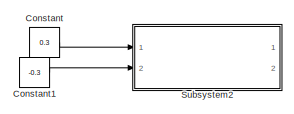
[diagram: root canvas - part 1/2, top right region]
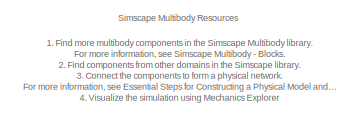
[diagram: root canvas - part 2/2, bottom left region]
MODEL slx_92b67b365d35
KIND model
CONFIG AbsTol = 1e-3
CONFIG EnableMultiTasking = on
CONFIG FixedStep = auto
CONFIG MaxStep = auto
CONFIG MinStep = auto
CONFIG RelTol = 1e-3
CONFIG SampleTimeConstraint = Unconstrained
CONFIG SolverName = VariableStepAuto
CONFIG StartTime = 0.0
CONFIG StopTime = 2
BLOCK [Constant] Constant
  Value = 0.3
BLOCK [Constant] Constant1
  Value = -0.3
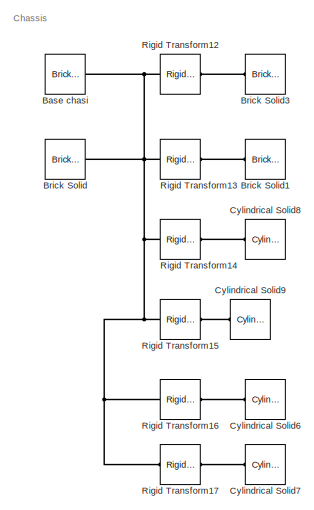
[diagram: Subsystem2 - part 1/6, top right region]
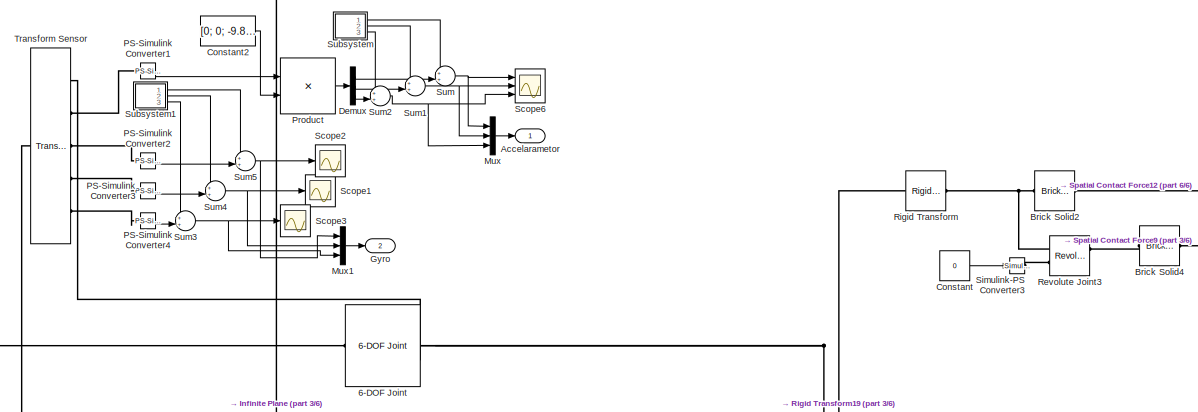
[diagram: Subsystem2 - part 2/6, top left region]
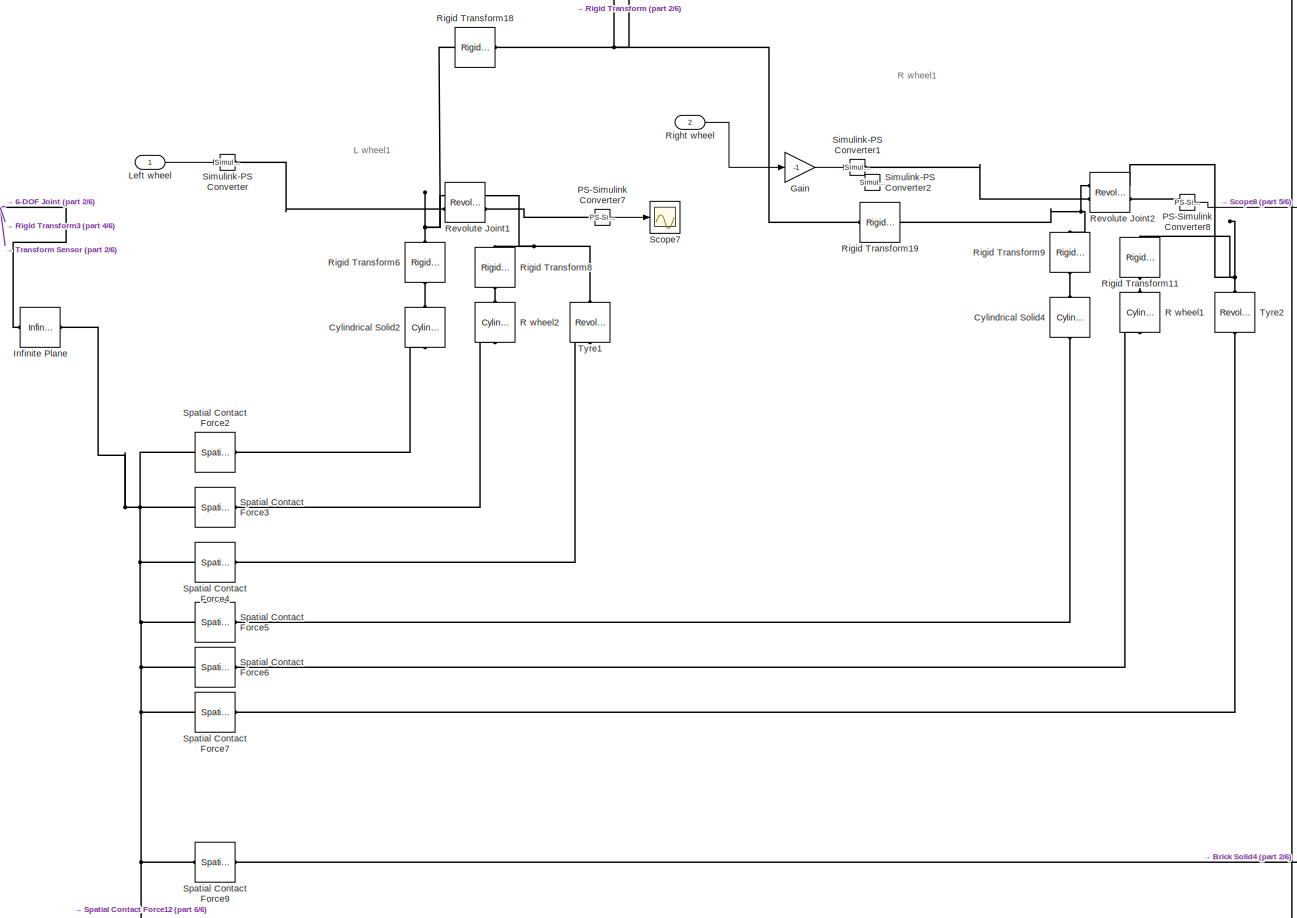
[diagram: Subsystem2 - part 3/6, bottom center region]
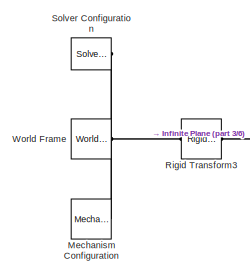
[diagram: Subsystem2 - part 4/6, middle left region]
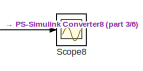
[diagram: Subsystem2 - part 5/6, middle right region]
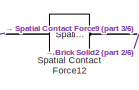
[diagram: Subsystem2 - part 6/6, bottom left region]
BLOCK [SubSystem] Subsystem2
  Ports = [2, 2]
  RequestExecContextInheritance = off
BLOCK [Reference] Subsystem2/6-DOF Joint  REF=sm_lib/Joints/6-DOF Joint
  Ports = [0, 0, 0, 0, 0, 1, 1]
  SourceBlock = sm_lib/Joints/6-DOF Joint
  SourceProductBaseCode = MS
  SourceType = 6-DOF Joint
BLOCK [Outport] Subsystem2/Accelarametor
BLOCK [Reference] Subsystem2/Base chasi  REF=sm_lib/Body Elements/Brick Solid
  Commented = on
  NameLocation = left
  Ports = [0, 0, 0, 0, 0, 0, 1]
  SourceBlock = sm_lib/Body Elements/Brick Solid
  SourceProductName = Multibody
  SourceType = Brick Solid
BLOCK [Reference] Subsystem2/Brick Solid  REF=sm_lib/Body Elements/Brick Solid
  Commented = on
  Ports = [0, 0, 0, 0, 0, 1, 1]
  SourceBlock = sm_lib/Body Elements/Brick Solid
  SourceProductBaseCode = MS
  SourceType = Brick Solid
BLOCK [Reference] Subsystem2/Brick Solid1  REF=sm_lib/Body Elements/Brick Solid
  Commented = on
  NameLocation = right
  Ports = [0, 0, 0, 0, 0, 1, 1]
  SourceBlock = sm_lib/Body Elements/Brick Solid
  SourceProductName = Multibody
  SourceType = Brick Solid
BLOCK [Reference] Subsystem2/Brick Solid2  REF=sm_lib/Body Elements/Brick Solid
  NameLocation = top
  Ports = [0, 0, 0, 0, 0, 1, 1]
  SourceBlock = sm_lib/Body Elements/Brick Solid
  SourceProductBaseCode = MS
  SourceType = Brick Solid
BLOCK [Reference] Subsystem2/Brick Solid3  REF=sm_lib/Body Elements/Brick Solid
  Commented = on
  NameLocation = right
  Ports = [0, 0, 0, 0, 0, 1, 1]
  SourceBlock = sm_lib/Body Elements/Brick Solid
  SourceProductName = Multibody
  SourceType = Brick Solid
BLOCK [Reference] Subsystem2/Brick Solid4  REF=sm_lib/Body Elements/Brick Solid
  NameLocation = top
  Ports = [0, 0, 0, 0, 0, 1, 1]
  SourceBlock = sm_lib/Body Elements/Brick Solid
  SourceProductBaseCode = MS
  SourceType = Brick Solid
BLOCK [Constant] Subsystem2/Constant
  Value = 0
BLOCK [Constant] Subsystem2/Constant2
  Value = [0; 0; -9.80665]
  VectorParams1D = off
BLOCK [Reference] Subsystem2/Cylindrical Solid2  REF=sm_lib/Body Elements/Cylindrical Solid
  NameLocation = right
  Ports = [0, 0, 0, 0, 0, 1, 1]
  SourceBlock = sm_lib/Body Elements/Cylindrical Solid
  SourceProductBaseCode = MS
  SourceType = Cylindrical Solid
BLOCK [Reference] Subsystem2/Cylindrical Solid4  REF=sm_lib/Body Elements/Cylindrical Solid
  NameLocation = right
  Ports = [0, 0, 0, 0, 0, 1, 1]
  SourceBlock = sm_lib/Body Elements/Cylindrical Solid
  SourceProductBaseCode = MS
  SourceType = Cylindrical Solid
BLOCK [Reference] Subsystem2/Cylindrical Solid6  REF=sm_lib/Body Elements/Cylindrical Solid
  Commented = on
  NameLocation = top
  Ports = [0, 0, 0, 0, 0, 1, 1]
  SourceBlock = sm_lib/Body Elements/Cylindrical Solid
  SourceProductBaseCode = MS
  SourceType = Cylindrical Solid
BLOCK [Reference] Subsystem2/Cylindrical Solid7  REF=sm_lib/Body Elements/Cylindrical Solid
  Commented = on
  NameLocation = top
  Ports = [0, 0, 0, 0, 0, 1, 1]
  SourceBlock = sm_lib/Body Elements/Cylindrical Solid
  SourceProductBaseCode = MS
  SourceType = Cylindrical Solid
BLOCK [Reference] Subsystem2/Cylindrical Solid8  REF=sm_lib/Body Elements/Cylindrical Solid
  Commented = on
  NameLocation = top
  Ports = [0, 0, 0, 0, 0, 1, 1]
  SourceBlock = sm_lib/Body Elements/Cylindrical Solid
  SourceProductBaseCode = MS
  SourceType = Cylindrical Solid
BLOCK [Reference] Subsystem2/Cylindrical Solid9  REF=sm_lib/Body Elements/Cylindrical Solid
  Commented = on
  NameLocation = top
  Ports = [0, 0, 0, 0, 0, 1, 1]
  SourceBlock = sm_lib/Body Elements/Cylindrical Solid
  SourceProductBaseCode = MS
  SourceType = Cylindrical Solid
BLOCK [Demux] Subsystem2/Demux
  Outputs = 3
  Ports = [1, 3]
BLOCK [Gain] Subsystem2/Gain
  Gain = -1
BLOCK [Outport] Subsystem2/Gyro
  Port = 2
BLOCK [Reference] Subsystem2/Infinite Plane  REF=sm_lib/Curves and Surfaces/Infinite Plane
  Ports = [0, 0, 0, 0, 0, 1, 1]
  SourceBlock = sm_lib/Curves and Surfaces/Infinite Plane
  SourceProductBaseCode = MS
  SourceType = Infinite Plane
BLOCK [Inport] Subsystem2/Left wheel
BLOCK [Reference] Subsystem2/Mechanism Configuration  REF=sm_lib/Utilities/Mechanism
Configuration
  Ports = [0, 0, 0, 0, 0, 0, 1]
  SourceBlock = sm_lib/Utilities/Mechanism\nConfiguration
  SourceProductName = Multibody
  SourceType = Mechanism\nConfiguration
BLOCK [Mux] Subsystem2/Mux
  DisplayOption = bar
  Inputs = 3
  Ports = [3, 1]
BLOCK [Mux] Subsystem2/Mux1
  DisplayOption = bar
  Inputs = 3
  Ports = [3, 1]
BLOCK [Reference] Subsystem2/PS-Simulink Converter1  REF=nesl_utility/PS-Simulink
Converter
  Ports = [0, 1, 0, 0, 0, 1]
  SourceBlock = nesl_utility/PS-Simulink\nConverter
  SourceProductBaseCode = PW,SS
  SourceType = PS-Simulink\nConverter
BLOCK [Reference] Subsystem2/PS-Simulink Converter2  REF=nesl_utility/PS-Simulink
Converter
  Ports = [0, 1, 0, 0, 0, 1]
  SourceBlock = nesl_utility/PS-Simulink\nConverter
  SourceProductBaseCode = PW,SS
  SourceType = PS-Simulink\nConverter
BLOCK [Reference] Subsystem2/PS-Simulink Converter3  REF=nesl_utility/PS-Simulink
Converter
  Ports = [0, 1, 0, 0, 0, 1]
  SourceBlock = nesl_utility/PS-Simulink\nConverter
  SourceProductBaseCode = PW,SS
  SourceType = PS-Simulink\nConverter
BLOCK [Reference] Subsystem2/PS-Simulink Converter4  REF=nesl_utility/PS-Simulink
Converter
  Ports = [0, 1, 0, 0, 0, 1]
  SourceBlock = nesl_utility/PS-Simulink\nConverter
  SourceProductBaseCode = PW,SS
  SourceType = PS-Simulink\nConverter
BLOCK [Reference] Subsystem2/PS-Simulink Converter7  REF=nesl_utility/PS-Simulink
Converter
  Ports = [0, 1, 0, 0, 0, 1]
  SourceBlock = nesl_utility/PS-Simulink\nConverter
  SourceProductBaseCode = PW,SS
  SourceType = PS-Simulink\nConverter
BLOCK [Reference] Subsystem2/PS-Simulink Converter8  REF=nesl_utility/PS-Simulink
Converter
  Ports = [0, 1, 0, 0, 0, 1]
  SourceBlock = nesl_utility/PS-Simulink\nConverter
  SourceProductBaseCode = PW,SS
  SourceType = PS-Simulink\nConverter
BLOCK [Product] Subsystem2/Product
  Multiplication = Matrix(*)
  Ports = [2, 1]
BLOCK [Reference] Subsystem2/R wheel1  REF=sm_lib/Body Elements/Cylindrical Solid
  NameLocation = right
  Ports = [0, 0, 0, 0, 0, 1, 1]
  SourceBlock = sm_lib/Body Elements/Cylindrical Solid
  SourceProductBaseCode = MS
  SourceType = Cylindrical Solid
BLOCK [Reference] Subsystem2/R wheel2  REF=sm_lib/Body Elements/Cylindrical Solid
  NameLocation = right
  Ports = [0, 0, 0, 0, 0, 1, 1]
  SourceBlock = sm_lib/Body Elements/Cylindrical Solid
  SourceProductBaseCode = MS
  SourceType = Cylindrical Solid
BLOCK [Reference] Subsystem2/Revolute Joint1  REF=sm_lib/Joints/Revolute Joint
  Ports = [0, 0, 0, 0, 0, 2, 2]
  SourceBlock = sm_lib/Joints/Revolute Joint
  SourceProductBaseCode = MS
  SourceType = Revolute Joint
BLOCK [Reference] Subsystem2/Revolute Joint2  REF=sm_lib/Joints/Revolute Joint
  Ports = [0, 0, 0, 0, 0, 2, 2]
  SourceBlock = sm_lib/Joints/Revolute Joint
  SourceProductBaseCode = MS
  SourceType = Revolute Joint
BLOCK [Reference] Subsystem2/Revolute Joint3  REF=sm_lib/Joints/Revolute Joint
  Ports = [0, 0, 0, 0, 0, 2, 2]
  SourceBlock = sm_lib/Joints/Revolute Joint
  SourceProductBaseCode = MS
  SourceType = Revolute Joint
BLOCK [Inport] Subsystem2/Right wheel
  Port = 2
BLOCK [Reference] Subsystem2/Rigid Transform  REF=sm_lib/Frames and
Transforms/Rigid
Transform
  Ports = [0, 0, 0, 0, 0, 1, 1]
  SourceBlock = sm_lib/Frames and\nTransforms/Rigid\nTransform
  SourceProductBaseCode = MS
  SourceType = Rigid\nTransform
BLOCK [Reference] Subsystem2/Rigid Transform11  REF=sm_lib/Frames and
Transforms/Rigid
Transform
  NameLocation = left
  Ports = [0, 0, 0, 0, 0, 1, 1]
  SourceBlock = sm_lib/Frames and\nTransforms/Rigid\nTransform
  SourceProductName = Multibody
  SourceType = Rigid\nTransform
BLOCK [Reference] Subsystem2/Rigid Transform12  REF=sm_lib/Frames and
Transforms/Rigid
Transform
  Commented = on
  Ports = [0, 0, 0, 0, 0, 1, 1]
  SourceBlock = sm_lib/Frames and\nTransforms/Rigid\nTransform
  SourceProductName = Multibody
  SourceType = Rigid\nTransform
BLOCK [Reference] Subsystem2/Rigid Transform13  REF=sm_lib/Frames and
Transforms/Rigid
Transform
  Commented = on
  Ports = [0, 0, 0, 0, 0, 1, 1]
  SourceBlock = sm_lib/Frames and\nTransforms/Rigid\nTransform
  SourceProductName = Multibody
  SourceType = Rigid\nTransform
BLOCK [Reference] Subsystem2/Rigid Transform14  REF=sm_lib/Frames and
Transforms/Rigid
Transform
  Commented = on
  Ports = [0, 0, 0, 0, 0, 1, 1]
  SourceBlock = sm_lib/Frames and\nTransforms/Rigid\nTransform
  SourceProductName = Multibody
  SourceType = Rigid\nTransform
BLOCK [Reference] Subsystem2/Rigid Transform15  REF=sm_lib/Frames and
Transforms/Rigid
Transform
  Commented = on
  Ports = [0, 0, 0, 0, 0, 1, 1]
  SourceBlock = sm_lib/Frames and\nTransforms/Rigid\nTransform
  SourceProductName = Multibody
  SourceType = Rigid\nTransform
BLOCK [Reference] Subsystem2/Rigid Transform16  REF=sm_lib/Frames and
Transforms/Rigid
Transform
  Commented = on
  Ports = [0, 0, 0, 0, 0, 1, 1]
  SourceBlock = sm_lib/Frames and\nTransforms/Rigid\nTransform
  SourceProductName = Multibody
  SourceType = Rigid\nTransform
BLOCK [Reference] Subsystem2/Rigid Transform17  REF=sm_lib/Frames and
Transforms/Rigid
Transform
  Commented = on
  Ports = [0, 0, 0, 0, 0, 1, 1]
  SourceBlock = sm_lib/Frames and\nTransforms/Rigid\nTransform
  SourceProductName = Multibody
  SourceType = Rigid\nTransform
BLOCK [Reference] Subsystem2/Rigid Transform18  REF=sm_lib/Frames and
Transforms/Rigid
Transform
  Ports = [0, 0, 0, 0, 0, 1, 1]
  SourceBlock = sm_lib/Frames and\nTransforms/Rigid\nTransform
  SourceProductName = Multibody
  SourceType = Rigid\nTransform
BLOCK [Reference] Subsystem2/Rigid Transform19  REF=sm_lib/Frames and
Transforms/Rigid
Transform
  Ports = [0, 0, 0, 0, 0, 1, 1]
  SourceBlock = sm_lib/Frames and\nTransforms/Rigid\nTransform
  SourceProductName = Multibody
  SourceType = Rigid\nTransform
BLOCK [Reference] Subsystem2/Rigid Transform3  REF=sm_lib/Frames and
Transforms/Rigid
Transform
  Ports = [0, 0, 0, 0, 0, 1, 1]
  SourceBlock = sm_lib/Frames and\nTransforms/Rigid\nTransform
  SourceProductName = Multibody
  SourceType = Rigid\nTransform
BLOCK [Reference] Subsystem2/Rigid Transform6  REF=sm_lib/Frames and
Transforms/Rigid
Transform
  NameLocation = left
  Ports = [0, 0, 0, 0, 0, 1, 1]
  SourceBlock = sm_lib/Frames and\nTransforms/Rigid\nTransform
  SourceProductName = Multibody
  SourceType = Rigid\nTransform
BLOCK [Reference] Subsystem2/Rigid Transform8  REF=sm_lib/Frames and
Transforms/Rigid
Transform
  NameLocation = left
  Ports = [0, 0, 0, 0, 0, 1, 1]
  SourceBlock = sm_lib/Frames and\nTransforms/Rigid\nTransform
  SourceProductName = Multibody
  SourceType = Rigid\nTransform
BLOCK [Reference] Subsystem2/Rigid Transform9  REF=sm_lib/Frames and
Transforms/Rigid
Transform
  NameLocation = left
  Ports = [0, 0, 0, 0, 0, 1, 1]
  SourceBlock = sm_lib/Frames and\nTransforms/Rigid\nTransform
  SourceProductName = Multibody
  SourceType = Rigid\nTransform
BLOCK [Scope] Subsystem2/Scope1
  Floating = off
  NumInputPorts = 1
  Ports = [1]
  ScopeSpecificationString = Simulink.scopes.TimeScopeBlockCfg('CurrentConfiguration', extmgr.ConfigurationSet(extmgr.Configuration('Core','General UI',true),extmgr.Configuration('Core','Source UI',true),extmgr.Configuration('Sources','WiredSimulink',true),extmgr.Configuration('Visuals','Time Domain',true,'SerializedDisplays',{struct('MinYLimReal','-0.84416','MaxYLimReal','0.59431','YLabelReal','','MinYLimMag','0.00000','MaxY...<+1368ch>
BLOCK [Scope] Subsystem2/Scope2
  Floating = off
  NumInputPorts = 1
  Ports = [1]
  ScopeSpecificationString = Simulink.scopes.TimeScopeBlockCfg('CurrentConfiguration', extmgr.ConfigurationSet(extmgr.Configuration('Core','General UI',true),extmgr.Configuration('Core','Source UI',true),extmgr.Configuration('Sources','WiredSimulink',true,'DataLoggingVariableName','ScopeData2'),extmgr.Configuration('Visuals','Time Domain',true,'SerializedDisplays',{struct('MinYLimReal','-5.07084','MaxYLimReal','7.0108','YLabe...<+1403ch>
BLOCK [Scope] Subsystem2/Scope3
  Floating = off
  NumInputPorts = 1
  Ports = [1]
  ScopeSpecificationString = Simulink.scopes.TimeScopeBlockCfg('CurrentConfiguration', extmgr.ConfigurationSet(extmgr.Configuration('Core','General UI',true),extmgr.Configuration('Core','Source UI',true),extmgr.Configuration('Sources','WiredSimulink',true,'DataLoggingVariableName','ScopeData3'),extmgr.Configuration('Visuals','Time Domain',true,'SerializedDisplays',{struct('MinYLimReal','-0.18495','MaxYLimReal','0.22005','YLab...<+1407ch>
BLOCK [Scope] Subsystem2/Scope6
  Floating = off
  NumInputPorts = 3
  Ports = [3]
  ScopeSpecificationString = Simulink.scopes.TimeScopeBlockCfg('CurrentConfiguration', extmgr.ConfigurationSet(extmgr.Configuration('Core','General UI',true),extmgr.Configuration('Core','Source UI',true),extmgr.Configuration('Sources','WiredSimulink',true,'DataLoggingVariableName','ScopeData6'),extmgr.Configuration('Visuals','Time Domain',true,'SerializedDisplays',{struct('MinYLimReal','-0.43226','MaxYLimReal','0.37659','YLab...<+2736ch>
BLOCK [Scope] Subsystem2/Scope7
  Floating = off
  NumInputPorts = 1
  Ports = [1]
  ScopeSpecificationString = Simulink.scopes.TimeScopeBlockCfg('CurrentConfiguration', extmgr.ConfigurationSet(extmgr.Configuration('Core','General UI',true),extmgr.Configuration('Core','Source UI',true),extmgr.Configuration('Sources','WiredSimulink',true,'DataLoggingVariableName','ScopeData7'),extmgr.Configuration('Visuals','Time Domain',true,'SerializedDisplays',{struct('MinYLimReal','-3.37388','MaxYLimReal','19.84843','YLa...<+1410ch>
BLOCK [Scope] Subsystem2/Scope8
  Floating = off
  NumInputPorts = 1
  Ports = [1]
  ScopeSpecificationString = Simulink.scopes.TimeScopeBlockCfg('CurrentConfiguration', extmgr.ConfigurationSet(extmgr.Configuration('Core','General UI',true),extmgr.Configuration('Core','Source UI',true),extmgr.Configuration('Sources','WiredSimulink',true,'DataLoggingVariableName','ScopeData8'),extmgr.Configuration('Visuals','Time Domain',true,'SerializedDisplays',{struct('MinYLimReal','-5068.17805','MaxYLimReal','42734.02491...<+1407ch>
BLOCK [Reference] Subsystem2/Simulink-PS Converter  REF=nesl_utility/Simulink-PS
Converter
  Ports = [1, 0, 0, 0, 0, 0, 1]
  SourceBlock = nesl_utility/Simulink-PS\nConverter
  SourceProductName = Utilities
  SourceType = Simulink-PS\nConverter
BLOCK [Reference] Subsystem2/Simulink-PS Converter1  REF=nesl_utility/Simulink-PS
Converter
  Ports = [1, 0, 0, 0, 0, 0, 1]
  SourceBlock = nesl_utility/Simulink-PS\nConverter
  SourceProductName = Utilities
  SourceType = Simulink-PS\nConverter
BLOCK [Reference] Subsystem2/Simulink-PS Converter2  REF=nesl_utility/Simulink-PS
Converter
  Ports = [1, 0, 0, 0, 0, 0, 1]
  SourceBlock = nesl_utility/Simulink-PS\nConverter
  SourceProductName = Utilities
  SourceType = Simulink-PS\nConverter
BLOCK [Reference] Subsystem2/Simulink-PS Converter3  REF=nesl_utility/Simulink-PS
Converter
  Ports = [1, 0, 0, 0, 0, 0, 1]
  SourceBlock = nesl_utility/Simulink-PS\nConverter
  SourceProductName = Utilities
  SourceType = Simulink-PS\nConverter
BLOCK [Reference] Subsystem2/Solver Configuration  REF=nesl_utility/Solver
Configuration
  Ports = [0, 0, 0, 0, 0, 0, 1]
  SourceBlock = nesl_utility/Solver\nConfiguration
  SourceProductName = Utilities
  SourceType = Solver\nConfiguration
BLOCK [Reference] Subsystem2/Spatial Contact Force12  REF=sm_lib/Forces and
Torques/Spatial
Contact Force
  Ports = [0, 0, 0, 0, 0, 1, 1]
  SourceBlock = sm_lib/Forces and\nTorques/Spatial\nContact Force
  SourceProductBaseCode = MS
  SourceType = Spatial\nContact Force
BLOCK [Reference] Subsystem2/Spatial Contact Force2  REF=sm_lib/Forces and
Torques/Spatial
Contact Force
  Ports = [0, 0, 0, 0, 0, 1, 1]
  SourceBlock = sm_lib/Forces and\nTorques/Spatial\nContact Force
  SourceProductBaseCode = MS
  SourceType = Spatial\nContact Force
BLOCK [Reference] Subsystem2/Spatial Contact Force3  REF=sm_lib/Forces and
Torques/Spatial
Contact Force
  Ports = [0, 0, 0, 0, 0, 1, 1]
  SourceBlock = sm_lib/Forces and\nTorques/Spatial\nContact Force
  SourceProductBaseCode = MS
  SourceType = Spatial\nContact Force
BLOCK [Reference] Subsystem2/Spatial Contact Force4  REF=sm_lib/Forces and
Torques/Spatial
Contact Force
  Ports = [0, 0, 0, 0, 0, 1, 1]
  SourceBlock = sm_lib/Forces and\nTorques/Spatial\nContact Force
  SourceProductBaseCode = MS
  SourceType = Spatial\nContact Force
BLOCK [Reference] Subsystem2/Spatial Contact Force5  REF=sm_lib/Forces and
Torques/Spatial
Contact Force
  Ports = [0, 0, 0, 0, 0, 1, 1]
  SourceBlock = sm_lib/Forces and\nTorques/Spatial\nContact Force
  SourceProductBaseCode = MS
  SourceType = Spatial\nContact Force
BLOCK [Reference] Subsystem2/Spatial Contact Force6  REF=sm_lib/Forces and
Torques/Spatial
Contact Force
  Ports = [0, 0, 0, 0, 0, 1, 1]
  SourceBlock = sm_lib/Forces and\nTorques/Spatial\nContact Force
  SourceProductBaseCode = MS
  SourceType = Spatial\nContact Force
BLOCK [Reference] Subsystem2/Spatial Contact Force7  REF=sm_lib/Forces and
Torques/Spatial
Contact Force
  Ports = [0, 0, 0, 0, 0, 1, 1]
  SourceBlock = sm_lib/Forces and\nTorques/Spatial\nContact Force
  SourceProductBaseCode = MS
  SourceType = Spatial\nContact Force
BLOCK [Reference] Subsystem2/Spatial Contact Force9  REF=sm_lib/Forces and
Torques/Spatial
Contact Force
  Ports = [0, 0, 0, 0, 0, 1, 1]
  SourceBlock = sm_lib/Forces and\nTorques/Spatial\nContact Force
  SourceProductBaseCode = MS
  SourceType = Spatial\nContact Force
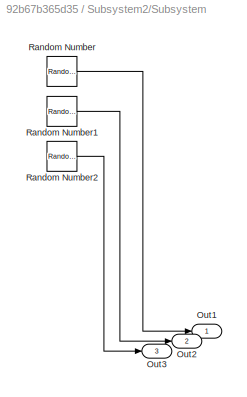
BLOCK [SubSystem] Subsystem2/Subsystem
  Ports = [0, 3]
  RequestExecContextInheritance = off
BLOCK [Outport] Subsystem2/Subsystem/Out1
BLOCK [Outport] Subsystem2/Subsystem/Out2
  Port = 2
BLOCK [Outport] Subsystem2/Subsystem/Out3
  Port = 3
BLOCK [RandomNumber] Subsystem2/Subsystem/Random Number
  SampleTime = 0.001
  Seed = 1
  Variance = 0.01
BLOCK [RandomNumber] Subsystem2/Subsystem/Random Number1
  SampleTime = 0.001
  Seed = 2
  Variance = 0.01
BLOCK [RandomNumber] Subsystem2/Subsystem/Random Number2
  SampleTime = 0.001
  Seed = 3
  Variance = 0.01
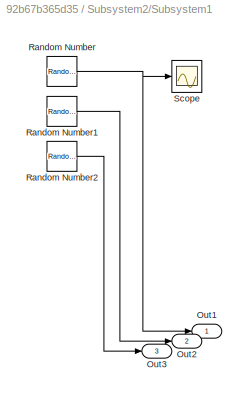
BLOCK [SubSystem] Subsystem2/Subsystem1
  Ports = [0, 3]
  RequestExecContextInheritance = off
BLOCK [Outport] Subsystem2/Subsystem1/Out1
BLOCK [Outport] Subsystem2/Subsystem1/Out2
  Port = 2
BLOCK [Outport] Subsystem2/Subsystem1/Out3
  Port = 3
BLOCK [RandomNumber] Subsystem2/Subsystem1/Random Number
  SampleTime = 0.001
  Seed = 5
  Variance = 0.001
BLOCK [RandomNumber] Subsystem2/Subsystem1/Random Number1
  SampleTime = 0.001
  Seed = 4
  Variance = 0.001
BLOCK [RandomNumber] Subsystem2/Subsystem1/Random Number2
  SampleTime = 0.001
  Seed = 6
  Variance = 0.001
BLOCK [Scope] Subsystem2/Subsystem1/Scope
  Floating = off
  NumInputPorts = 1
  Ports = [1]
  ScopeSpecificationString = Simulink.scopes.TimeScopeBlockCfg('CurrentConfiguration', extmgr.ConfigurationSet(extmgr.Configuration('Core','General UI',true),extmgr.Configuration('Core','Source UI',true),extmgr.Configuration('Sources','WiredSimulink',true,'DataLoggingVariableName','ScopeData1'),extmgr.Configuration('Visuals','Time Domain',true,'SerializedDisplays',{struct('MinYLimReal','-0.17125','MaxYLimReal','0.15582','YLab...<+1372ch>
BLOCK [Sum] Subsystem2/Sum
  Inputs = ++|
  Ports = [2, 1]
BLOCK [Sum] Subsystem2/Sum1
  Inputs = ++|
  Ports = [2, 1]
BLOCK [Sum] Subsystem2/Sum2
  Inputs = ++|
  Ports = [2, 1]
BLOCK [Sum] Subsystem2/Sum3
  Inputs = ++|
  Ports = [2, 1]
BLOCK [Sum] Subsystem2/Sum4
  Inputs = ++|
  Ports = [2, 1]
BLOCK [Sum] Subsystem2/Sum5
  Inputs = ++|
  Ports = [2, 1]
BLOCK [Reference] Subsystem2/Transform Sensor  REF=sm_lib/Frames and
Transforms/Transform
Sensor
  Ports = [0, 0, 0, 0, 0, 1, 5]
  SourceBlock = sm_lib/Frames and\nTransforms/Transform\nSensor
  SourceProductBaseCode = MS
  SourceType = Transform\nSensor
BLOCK [Reference] Subsystem2/Tyre1  REF=sm_lib/Body Elements/Revolved Solid
  NameLocation = right
  Ports = [0, 0, 0, 0, 0, 1, 1]
  SourceBlock = sm_lib/Body Elements/Revolved Solid
  SourceProductBaseCode = MS
  SourceType = Revolved Solid
BLOCK [Reference] Subsystem2/Tyre2  REF=sm_lib/Body Elements/Revolved Solid
  NameLocation = right
  Ports = [0, 0, 0, 0, 0, 1, 1]
  SourceBlock = sm_lib/Body Elements/Revolved Solid
  SourceProductBaseCode = MS
  SourceType = Revolved Solid
BLOCK [Reference] Subsystem2/World Frame  REF=sm_lib/Frames and
Transforms/World Frame
  Ports = [0, 0, 0, 0, 0, 0, 1]
  SourceBlock = sm_lib/Frames and\nTransforms/World Frame
  SourceProductName = Multibody
  SourceType = World Frame
ANNOTATION (root): 1. Find more multibody components in the Simscape Multibody library . For more information, see Simscape Multibody - Blocks . 2. Find components from other domains in the Simscape library . 3. Connect the components to form a physical network. For more information, see Essential Steps for Constructing a Physical Model and Creating a Multibody Model . 4. Visualize the simulation using Mechanics Exp...<+52ch>
ANNOTATION (root): Simscape Multibody Resources
ANNOTATION Subsystem2: Chassis
ANNOTATION Subsystem2: L wheel1
ANNOTATION Subsystem2: R wheel1
LINE Constant1:1 -> Subsystem2:2
LINE Constant:1 -> Subsystem2:1
LINE Subsystem2/Constant2:1 -> Subsystem2/Product:2
LINE Subsystem2/Constant:1 -> Subsystem2/Simulink-PS Converter3:1
LINE Subsystem2/Demux:1 -> Subsystem2/Sum:2
LINE Subsystem2/Demux:2 -> Subsystem2/Sum1:2
LINE Subsystem2/Demux:3 -> Subsystem2/Sum2:2
LINE Subsystem2/Gain:1 -> Subsystem2/Simulink-PS Converter1:1
LINE Subsystem2/Left wheel:1 -> Subsystem2/Simulink-PS Converter:1
LINE Subsystem2/Mux1:1 -> Subsystem2/Gyro:1
LINE Subsystem2/Mux:1 -> Subsystem2/Accelarametor:1
LINE Subsystem2/PS-Simulink Converter1:1 -> Subsystem2/Product:1
LINE Subsystem2/PS-Simulink Converter2:1 -> Subsystem2/Sum5:2
LINE Subsystem2/PS-Simulink Converter3:1 -> Subsystem2/Sum4:2
LINE Subsystem2/PS-Simulink Converter4:1 -> Subsystem2/Sum3:2
LINE Subsystem2/PS-Simulink Converter7:1 -> Subsystem2/Scope7:1
LINE Subsystem2/PS-Simulink Converter8:1 -> Subsystem2/Scope8:1
LINE Subsystem2/Product:1 -> Subsystem2/Demux:1
LINE Subsystem2/Right wheel:1 -> Subsystem2/Gain:1
LINE Subsystem2/Subsystem/Random Number1:1 -> Subsystem2/Subsystem/Out2:1
LINE Subsystem2/Subsystem/Random Number2:1 -> Subsystem2/Subsystem/Out3:1
LINE Subsystem2/Subsystem/Random Number:1 -> Subsystem2/Subsystem/Out1:1
LINE Subsystem2/Subsystem1/Random Number1:1 -> Subsystem2/Subsystem1/Out2:1
LINE Subsystem2/Subsystem1/Random Number2:1 -> Subsystem2/Subsystem1/Out3:1
NET Subsystem2/Subsystem1/Random Number:1 -> Subsystem2/Subsystem1/Out1:1, Subsystem2/Subsystem1/Scope:1
LINE Subsystem2/Subsystem1:1 -> Subsystem2/Sum5:1
LINE Subsystem2/Subsystem1:2 -> Subsystem2/Sum4:1
LINE Subsystem2/Subsystem1:3 -> Subsystem2/Sum3:1
LINE Subsystem2/Subsystem:1 -> Subsystem2/Sum:1
LINE Subsystem2/Subsystem:2 -> Subsystem2/Sum1:1
LINE Subsystem2/Subsystem:3 -> Subsystem2/Sum2:1
NET Subsystem2/Sum1:1 -> Subsystem2/Mux:2, Subsystem2/Scope6:2
NET Subsystem2/Sum2:1 -> Subsystem2/Mux:3, Subsystem2/Scope6:3
NET Subsystem2/Sum3:1 -> Subsystem2/Mux1:3, Subsystem2/Scope3:1
NET Subsystem2/Sum4:1 -> Subsystem2/Mux1:2, Subsystem2/Scope1:1
NET Subsystem2/Sum5:1 -> Subsystem2/Mux1:1, Subsystem2/Scope2:1
NET Subsystem2/Sum:1 -> Subsystem2/Mux:1, Subsystem2/Scope6:1
PNET net1: Subsystem2/6-DOF Joint:LConn1 -- Subsystem2/Infinite Plane:LConn1 -- Subsystem2/Rigid Transform3:RConn1 -- Subsystem2/Transform Sensor:LConn1
PNET net2: Subsystem2/6-DOF Joint:RConn1 -- Subsystem2/Rigid Transform18:RConn1 -- Subsystem2/Rigid Transform19:LConn1 -- Subsystem2/Rigid Transform:LConn1 -- Subsystem2/Transform Sensor:RConn1
PNET net3: Subsystem2/Base chasi:RConn1 -- Subsystem2/Brick Solid:RConn1 -- Subsystem2/Rigid Transform12:LConn1 -- Subsystem2/Rigid Transform13:LConn1 -- Subsystem2/Rigid Transform14:LConn1 -- Subsystem2/Rigid Transform15:LConn1 -- Subsystem2/Rigid Transform16:LConn1 -- Subsystem2/Rigid Transform17:LConn1
PLINE Subsystem2/Brick Solid1:RConn1 -- Subsystem2/Rigid Transform13:RConn1
PLINE Subsystem2/Brick Solid2:LConn1 -- Subsystem2/Spatial Contact Force12:RConn1
PNET net4: Subsystem2/Brick Solid2:RConn1 -- Subsystem2/Revolute Joint3:LConn1 -- Subsystem2/Rigid Transform:RConn1
PLINE Subsystem2/Brick Solid3:RConn1 -- Subsystem2/Rigid Transform12:RConn1
PLINE Subsystem2/Brick Solid4:LConn1 -- Subsystem2/Spatial Contact Force9:RConn1
PLINE Subsystem2/Brick Solid4:RConn1 -- Subsystem2/Revolute Joint3:RConn1
PLINE Subsystem2/Cylindrical Solid2:LConn1 -- Subsystem2/Spatial Contact Force2:RConn1
PLINE Subsystem2/Cylindrical Solid2:RConn1 -- Subsystem2/Rigid Transform6:RConn1
PLINE Subsystem2/Cylindrical Solid4:LConn1 -- Subsystem2/Spatial Contact Force5:RConn1
PLINE Subsystem2/Cylindrical Solid4:RConn1 -- Subsystem2/Rigid Transform9:RConn1
PLINE Subsystem2/Cylindrical Solid6:RConn1 -- Subsystem2/Rigid Transform16:RConn1
PLINE Subsystem2/Cylindrical Solid7:RConn1 -- Subsystem2/Rigid Transform17:RConn1
PLINE Subsystem2/Cylindrical Solid8:RConn1 -- Subsystem2/Rigid Transform14:RConn1
PLINE Subsystem2/Cylindrical Solid9:RConn1 -- Subsystem2/Rigid Transform15:RConn1
PNET net5: Subsystem2/Infinite Plane:RConn1 -- Subsystem2/Spatial Contact Force12:LConn1 -- Subsystem2/Spatial Contact Force2:LConn1 -- Subsystem2/Spatial Contact Force3:LConn1 -- Subsystem2/Spatial Contact Force4:LConn1 -- Subsystem2/Spatial Contact Force5:LConn1 -- Subsystem2/Spatial Contact Force6:LConn1 -- Subsystem2/Spatial Contact Force7:LConn1 -- Subsystem2/Spatial Contact Force9:LConn1
PNET net6: Subsystem2/Mechanism Configuration:RConn1 -- Subsystem2/Rigid Transform3:LConn1 -- Subsystem2/Solver Configuration:RConn1 -- Subsystem2/World Frame:RConn1
PLINE Subsystem2/PS-Simulink Converter1:LConn1 -- Subsystem2/Transform Sensor:RConn2
PLINE Subsystem2/PS-Simulink Converter2:LConn1 -- Subsystem2/Transform Sensor:RConn3
PLINE Subsystem2/PS-Simulink Converter3:LConn1 -- Subsystem2/Transform Sensor:RConn4
PLINE Subsystem2/PS-Simulink Converter4:LConn1 -- Subsystem2/Transform Sensor:RConn5
PLINE Subsystem2/PS-Simulink Converter7:LConn1 -- Subsystem2/Revolute Joint1:RConn2
PLINE Subsystem2/PS-Simulink Converter8:LConn1 -- Subsystem2/Revolute Joint2:RConn2
PLINE Subsystem2/R wheel1:LConn1 -- Subsystem2/Spatial Contact Force6:RConn1
PLINE Subsystem2/R wheel1:RConn1 -- Subsystem2/Rigid Transform11:RConn1
PLINE Subsystem2/R wheel2:LConn1 -- Subsystem2/Spatial Contact Force3:RConn1
PLINE Subsystem2/R wheel2:RConn1 -- Subsystem2/Rigid Transform8:RConn1
PNET net7: Subsystem2/Revolute Joint1:LConn1 -- Subsystem2/Rigid Transform18:LConn1 -- Subsystem2/Rigid Transform6:LConn1
PLINE Subsystem2/Revolute Joint1:LConn2 -- Subsystem2/Simulink-PS Converter:RConn1
PNET net8: Subsystem2/Revolute Joint1:RConn1 -- Subsystem2/Rigid Transform8:LConn1 -- Subsystem2/Tyre1:RConn1
PNET net9: Subsystem2/Revolute Joint2:LConn1 -- Subsystem2/Rigid Transform19:RConn1 -- Subsystem2/Rigid Transform9:LConn1
PLINE Subsystem2/Revolute Joint2:LConn2 -- Subsystem2/Simulink-PS Converter1:RConn1
PNET net10: Subsystem2/Revolute Joint2:RConn1 -- Subsystem2/Rigid Transform11:LConn1 -- Subsystem2/Tyre2:RConn1
PLINE Subsystem2/Revolute Joint3:LConn2 -- Subsystem2/Simulink-PS Converter3:RConn1
PLINE Subsystem2/Spatial Contact Force4:RConn1 -- Subsystem2/Tyre1:LConn1
PLINE Subsystem2/Spatial Contact Force7:RConn1 -- Subsystem2/Tyre2:LConn1
note: NET lines group one-source signal fan-out (src -> all destinations, sorted); 1:1 wires keep LINE; PNET lines group multi-terminal physical nets as a canonical sorted terminal list (undirected conserving connections); 2-terminal nets keep the pairwise PLINE form
